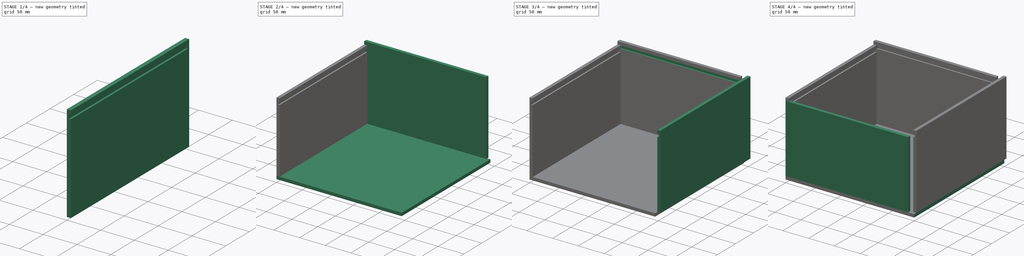
[diagram: build sequence overview — one tinted view per stage of 4, left to right]
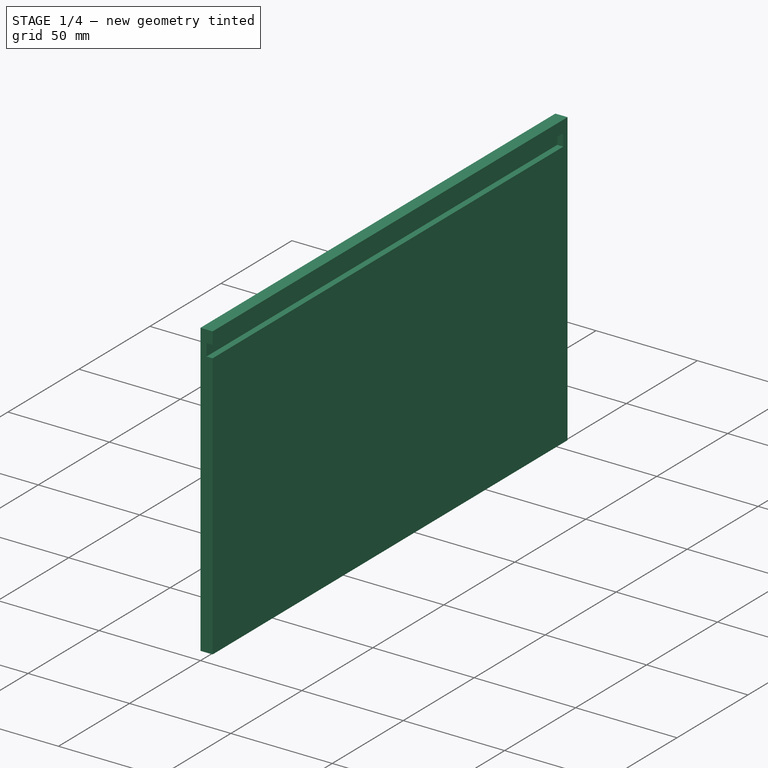
[diagram: stage 1 of 4 — iso view after this stage's code; geometry added in this stage tinted green]
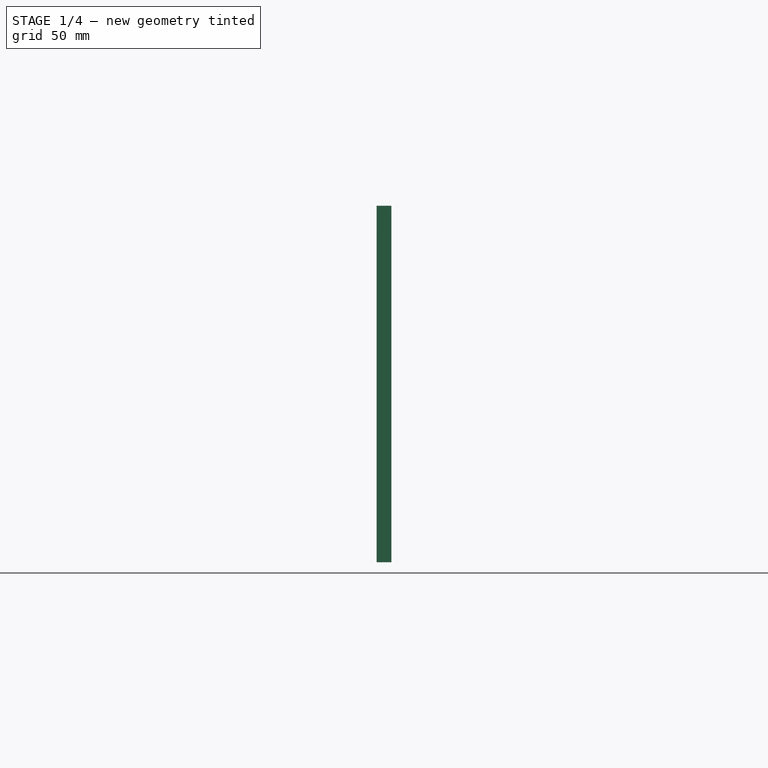
[diagram: stage 1 of 4 — front view after this stage's code; geometry added in this stage tinted green]
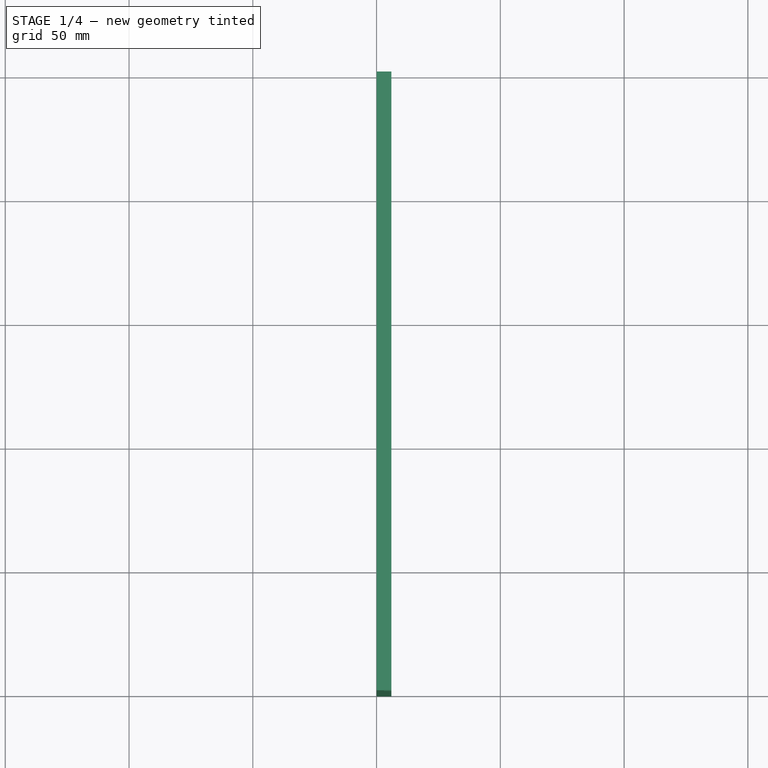
[diagram: stage 1 of 4 — top view after this stage's code; geometry added in this stage tinted green]
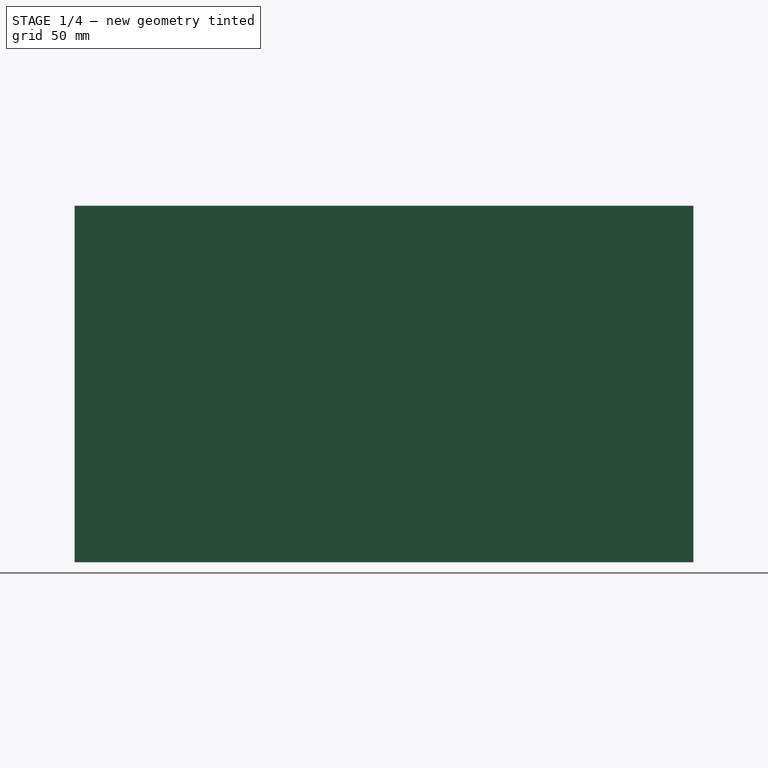
[diagram: stage 1 of 4 — right view after this stage's code; geometry added in this stage tinted green]
FCSTD DOCUMENT  (FreeCAD 0.20R29603 (Git))
Label: mill_cutter_box_precut
License: All rights reserved
LicenseURL: http://en.wikipedia.org/wiki/All_rights_reserved
objects: Part::Feature×12, Sketcher::SketchObject×9, PartDesign::Pad×6, PartDesign::Body×6, PartDesign::Pocket×3, App::DocumentObjectGroup×1, Part::FeaturePython×1
note: 46 computed .brp shape members not serialized (recipe doc carries the construction recipe); baked Part::Feature solids carry a one-line shape summary decoded from their .brp

FEATURE [PartDesign::Body] Body005  label="cover"
  Group = -> [Sketch008,Pad005]
  Origin = -> Origin005
  Placement = pos=(3,0,138) rot=(0,0,1;0rad)
  Tip = -> Pad005
FEATURE [Sketcher::SketchObject] Sketch009
  FullyConstrained = true
  MapMode = 5
  Placement = pos=(0,0,0) rot=(0.57735,0.57735,0.57735;2.0944rad)
  Support = -> [YZ_Plane006]
  sketch-geometry (4):
    g0: LineSegment StartX=0 StartY=0 StartZ=0 EndX=250 EndY=0 EndZ=0
    g1: LineSegment StartX=250 StartY=0 StartZ=0 EndX=250 EndY=144 EndZ=0
    g2: LineSegment StartX=250 StartY=144 StartZ=0 EndX=0 EndY=144 EndZ=0
    g3: LineSegment StartX=0 StartY=144 StartZ=0 EndX=0 EndY=0 EndZ=0
  constraints (11):
    c: Coincident(g0,g1)
    c: Coincident(g1,g2)
    c: Coincident(g2,g3)
    c: Coincident(g3,g0)
    c: Horizontal(g0)
    c: Horizontal(g2)
    c: Vertical(g1)
    c: Vertical(g3)
    c: Coincident(g0,g-1)
    c: DistanceX(g2,g2) = 250
    c: DistanceY(g1,g1) = 144
FEATURE [PartDesign::Pad] Pad006
  Direction = (1,-2e-16,3e-16)
  Length = 6
  Length2 = 10
  Placement = pos=(0,0,0) rot=(0.57735,0.57735,0.57735;2.0944rad)
  Profile = -> Sketch009
  ReferenceAxis = -> Sketch009 [N_Axis]
  Type = 0
FEATURE [Sketcher::SketchObject] Sketch010
  ExternalGeometry = -> [Pad006]
  FullyConstrained = true
  MapMode = 5
  Placement = pos=(6,-2.7e-15,2e-15) rot=(0.57735,0.57735,0.57735;2.0944rad)
  Support = -> [Pad006]
  sketch-geometry (4):
    g0: LineSegment StartX=5.68e-14 StartY=138 StartZ=0 EndX=247 EndY=138 EndZ=0
    g1: LineSegment StartX=247 StartY=138 StartZ=0 EndX=247 EndY=132 EndZ=0
    g2: LineSegment StartX=247 StartY=132 StartZ=0 EndX=5.68e-14 EndY=132 EndZ=0
    g3: LineSegment StartX=5.68e-14 StartY=132 StartZ=0 EndX=5.68e-14 EndY=138 EndZ=0
  constraints (12):
    c: Coincident(g0,g1)
    c: Coincident(g1,g2)
    c: Coincident(g2,g3)
    c: Coincident(g3,g0)
    c: Horizontal(g0)
    c: Horizontal(g2)
    c: Vertical(g1)
    c: Vertical(g3)
    c: PointOnObject(g0,g-4)
    c: DistanceY(g1,g1) = 6
    c: DistanceY(g0,g-4) = 6
    c: DistanceX(g0,g-3) = 3
FEATURE [PartDesign::Pocket] Pocket
  BaseFeature = -> Pad006
  Direction = (-1,4e-16,-4e-16)
  Length = 3
  Length2 = 5
  Placement = pos=(0,0,0) rot=(0.57735,0.57735,0.57735;2.0944rad)
  Profile = -> Sketch010
  ReferenceAxis = -> Sketch010 [N_Axis]
  Type = 0
FEATURE [PartDesign::Body] Body006  label="left_plate"
  Group = -> [Sketch009,Pad006,Sketch010,Pocket]
  Origin = -> Origin006
  Placement = pos=(0,0,6) rot=(0,0,1;0rad)
  Tip = -> Pocket
FEATURE [Part::Feature] Body007  label="bottom_plate001"
  shape: bbox 250 x 250 x 6 mm, 6 faces (baked)
FEATURE [Part::Feature] Body001001  label="front_plate001"
  Placement = pos=(6,0,0) rot=(0,0,1;0rad)
  shape: bbox 238 x 6 x 132 mm, 6 faces (baked)
FEATURE [Part::Feature] Body002001  label="back_plate001"
  Placement = pos=(6,0,0) rot=(0,0,1;0rad)
  shape: bbox 238 x 6 x 144 mm, 10 faces (baked)
FEATURE [Part::Feature] Body004001  label="right_plate001"
  Placement = pos=(0,-6,0) rot=(0,0,1;0rad)
  shape: bbox 6 x 250 x 144 mm, 10 faces (baked)
FEATURE [Part::Feature] Body005001  label="cover001"
  Placement = pos=(3,0,138) rot=(0,0,1;0rad)
  shape: bbox 244 x 247 x 6 mm, 6 faces (baked)
FEATURE [Part::Feature] Body006001  label="left_plate001"
  Placement = pos=(0,0,6) rot=(0,0,1;0rad)
  shape: bbox 6 x 250 x 144 mm, 10 faces (baked)
FEATURE [App::DocumentObjectGroup] MultiJoin_origin_parts
  Group = -> [Body007,Body001001,Body002001,Body004001,Body005001,Body006001]
FEATURE [Part::Feature] bottom_plate001_tab
  shape: bbox 250 x 250 x 6 mm, 62 faces (baked)
FEATURE [Part::Feature] front_plate001_tab
  shape: bbox 250 x 6 x 138 mm, 38 faces (baked)
FEATURE [Part::Feature] back_plate001_tab
  shape: bbox 250 x 6.032 x 150 mm, 46 faces (baked)
FEATURE [Part::Feature] right_plate001_tab
  shape: bbox 6 x 250 x 150 mm, 40 faces (baked)
FEATURE [Part::Feature] cover001_tab
  Placement = pos=(3,0,138) rot=(0,0,1;0rad)
  shape: bbox 244 x 247 x 6 mm, 6 faces (baked)
FEATURE [Part::Feature] left_plate001_tab
  shape: bbox 6 x 250 x 150 mm, 40 faces (baked)
FEATURE [Part::FeaturePython] MultiJoin  # WARN: FeaturePython — macro-defined, semantics opaque (R4)
  fromParts = -> [MultiJoin_origin_parts,Body007,Body001001,Body002001,Body004001,Body005001,Body006001]
  generatedParts = -> [bottom_plate001_tab,front_plate001_tab,back_plate001_tab,right_plate001_tab,cover001_tab,left_plate001_tab]
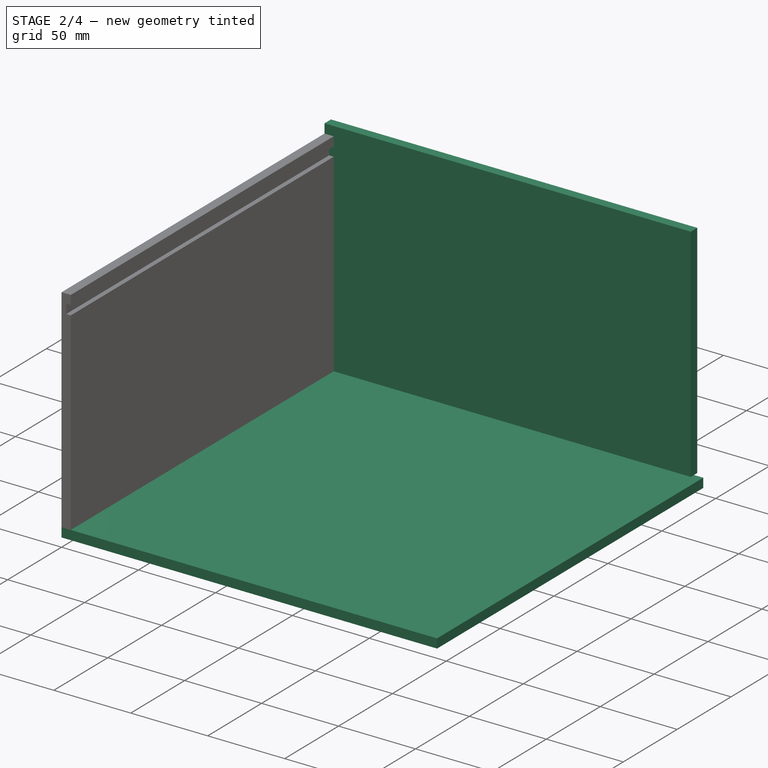
[diagram: stage 2 of 4 — iso view after this stage's code; geometry added in this stage tinted green]
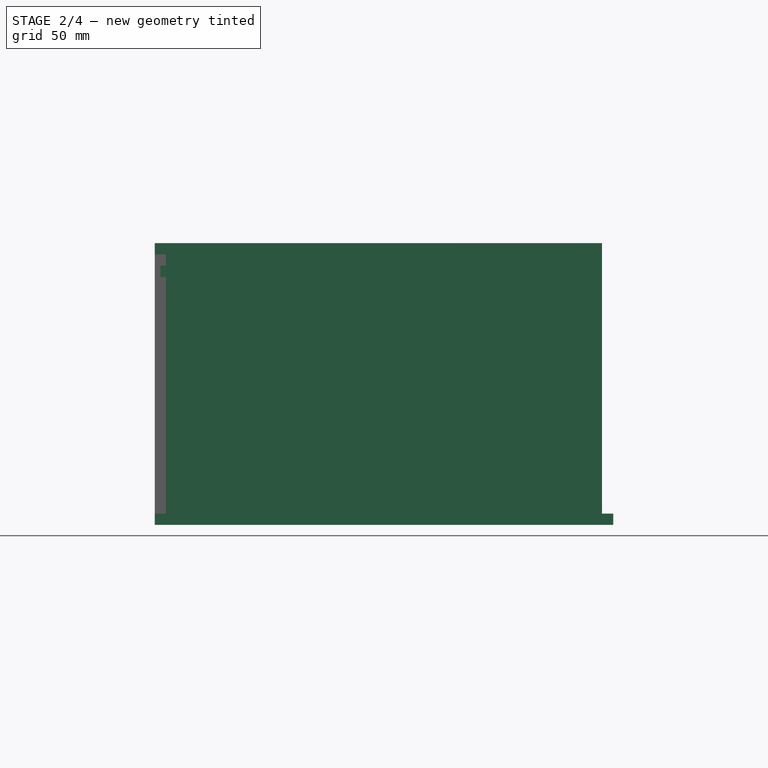
[diagram: stage 2 of 4 — front view after this stage's code; geometry added in this stage tinted green]
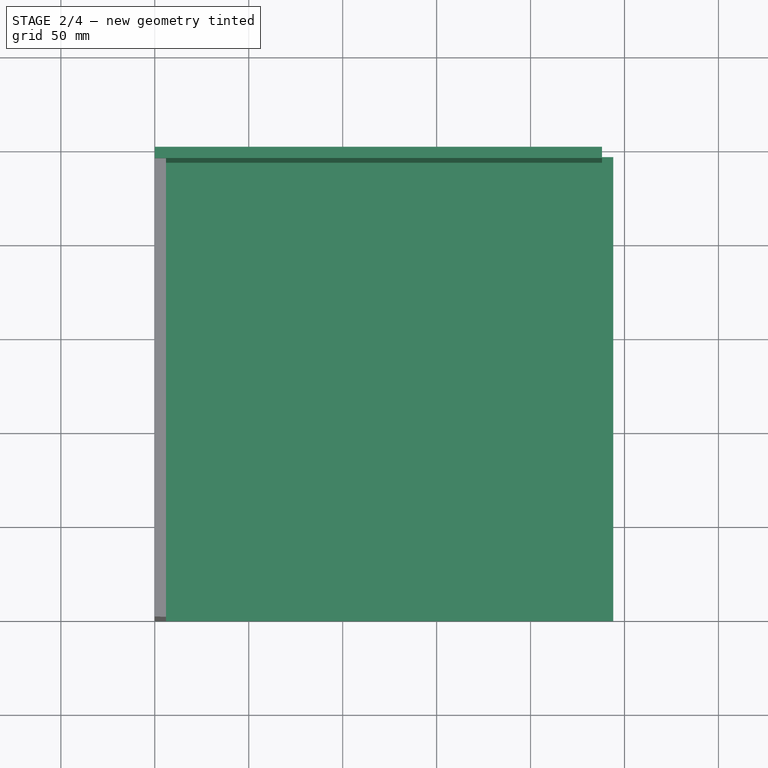
[diagram: stage 2 of 4 — top view after this stage's code; geometry added in this stage tinted green]
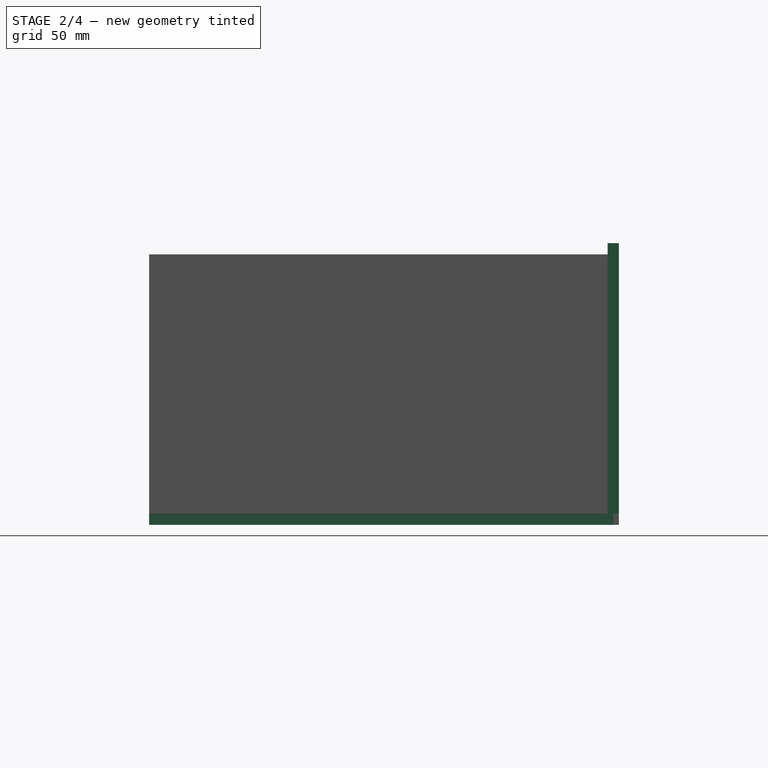
[diagram: stage 2 of 4 — right view after this stage's code; geometry added in this stage tinted green]
FEATURE [PartDesign::Body] Body001  label="front_plate"
  Group = -> [Sketch001,Pad001]
  Origin = -> Origin001
  Placement = pos=(6,0,0) rot=(0,0,1;0rad)
  Tip = -> Pad001
FEATURE [Sketcher::SketchObject] Sketch002
  AttachmentOffset = pos=(0,6,-250) rot=(0,0,1;0rad)
  FullyConstrained = true
  MapMode = 5
  Placement = pos=(0,250,6) rot=(1,0,0;1.5708rad)
  Support = -> [XZ_Plane002]
  sketch-geometry (4):
    g0: LineSegment StartX=0 StartY=0 StartZ=0 EndX=238 EndY=0 EndZ=0
    g1: LineSegment StartX=238 StartY=0 StartZ=0 EndX=238 EndY=144 EndZ=0
    g2: LineSegment StartX=238 StartY=144 StartZ=0 EndX=0 EndY=144 EndZ=0
    g3: LineSegment StartX=0 StartY=144 StartZ=0 EndX=0 EndY=0 EndZ=0
  constraints (11):
    c: Coincident(g0,g1)
    c: Coincident(g1,g2)
    c: Coincident(g2,g3)
    c: Coincident(g3,g0)
    c: Horizontal(g0)
    c: Horizontal(g2)
    c: Vertical(g1)
    c: Vertical(g3)
    c: Coincident(g0,g-1)
    c: DistanceX(g2,g2) = 238
    c: DistanceY(g3,g3) = 144
FEATURE [PartDesign::Pad] Pad002
  Direction = (0,-1,-2e-16)
  Length = 6
  Length2 = 10
  Placement = pos=(0,0,0) rot=(1,0,0;1.5708rad)
  Profile = -> Sketch002
  ReferenceAxis = -> Sketch002 [N_Axis]
  Type = 0
FEATURE [PartDesign::Body] Body002  label="back_plate"
  Group = -> [Sketch002,Pad002,Sketch007,Pocket002]
  Origin = -> Origin002
  Placement = pos=(6,0,0) rot=(0,0,1;0rad)
  Tip = -> Pocket002
FEATURE [Sketcher::SketchObject] Sketch008
  FullyConstrained = true
  MapMode = 5
  Support = -> [XY_Plane005]
  sketch-geometry (4):
    g0: LineSegment StartX=0 StartY=0 StartZ=0 EndX=244 EndY=0 EndZ=0
    g1: LineSegment StartX=244 StartY=0 StartZ=0 EndX=244 EndY=247 EndZ=0
    g2: LineSegment StartX=244 StartY=247 StartZ=0 EndX=0 EndY=247 EndZ=0
    g3: LineSegment StartX=0 StartY=247 StartZ=0 EndX=0 EndY=0 EndZ=0
  constraints (11):
    c: Coincident(g0,g1)
    c: Coincident(g1,g2)
    c: Coincident(g2,g3)
    c: Coincident(g3,g0)
    c: Horizontal(g0)
    c: Horizontal(g2)
    c: Vertical(g1)
    c: Vertical(g3)
    c: Coincident(g0,g-1)
    c: DistanceY(g1,g1) = 247
    c: DistanceX(g0,g0) = 244
FEATURE [PartDesign::Pad] Pad005
  Direction = (0,0,1)
  Length = 6
  Length2 = 10
  Profile = -> Sketch008
  ReferenceAxis = -> Sketch008 [N_Axis]
  Type = 0
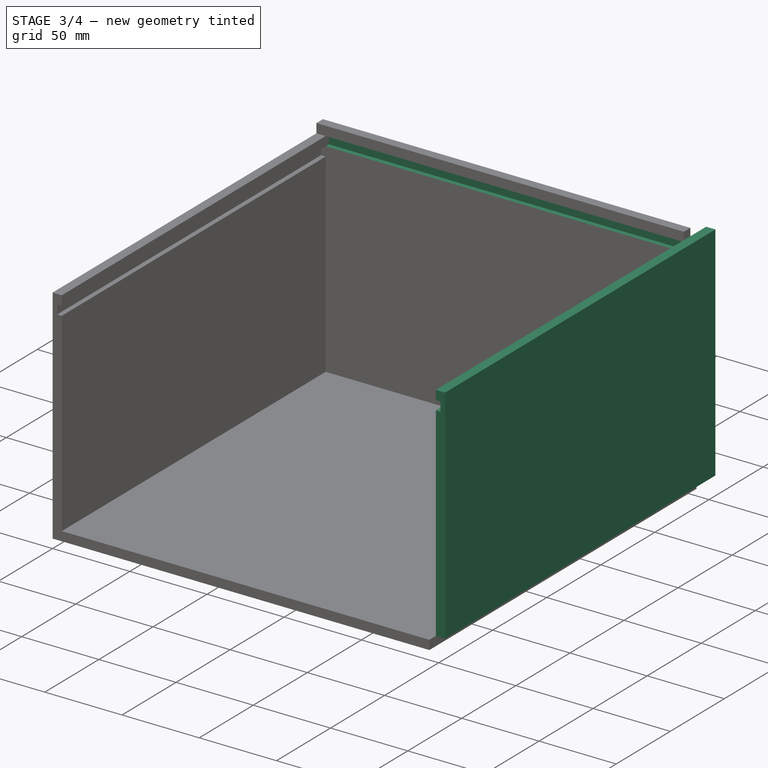
[diagram: stage 3 of 4 — iso view after this stage's code; geometry added in this stage tinted green]
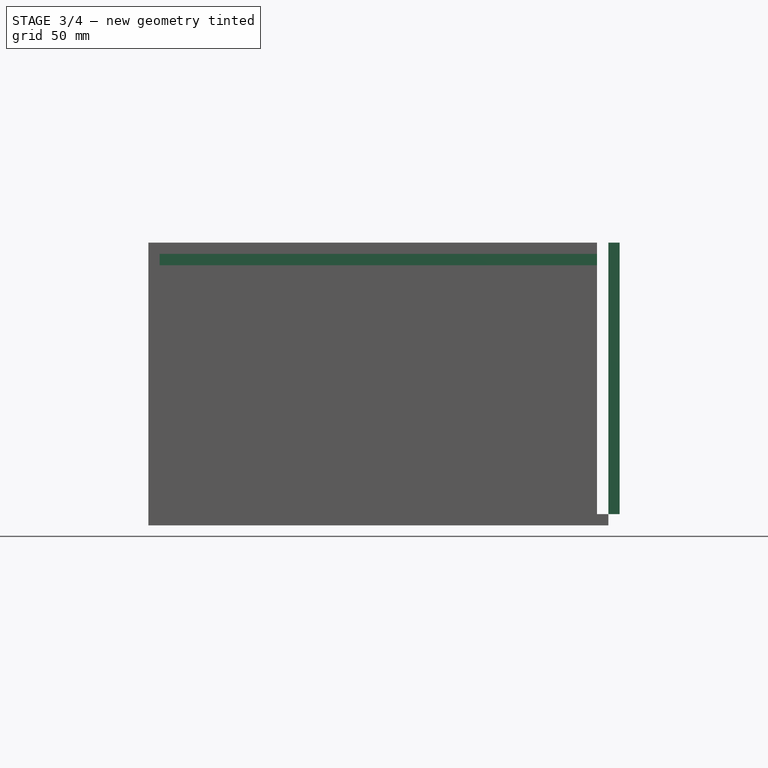
[diagram: stage 3 of 4 — front view after this stage's code; geometry added in this stage tinted green]
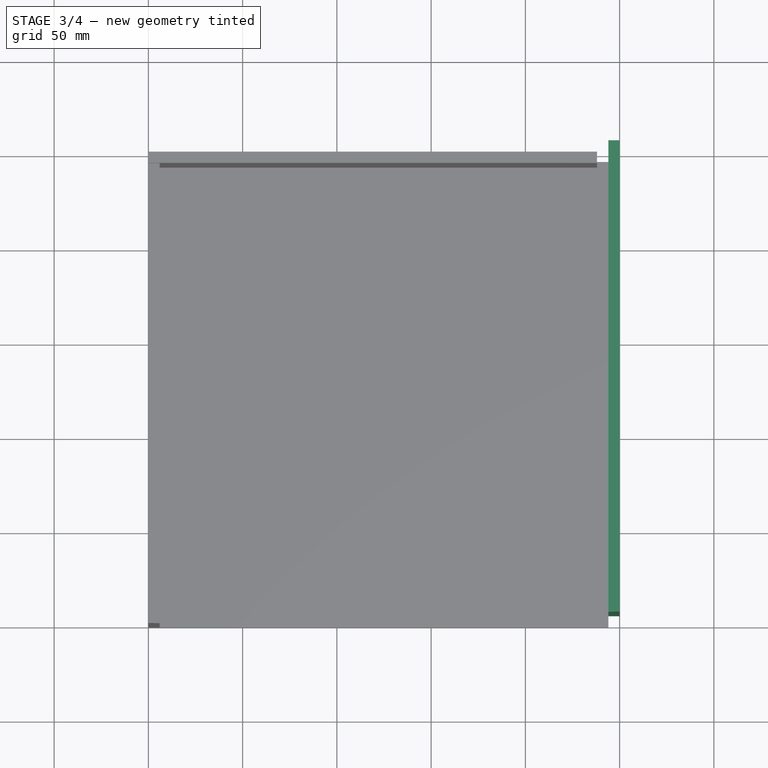
[diagram: stage 3 of 4 — top view after this stage's code; geometry added in this stage tinted green]
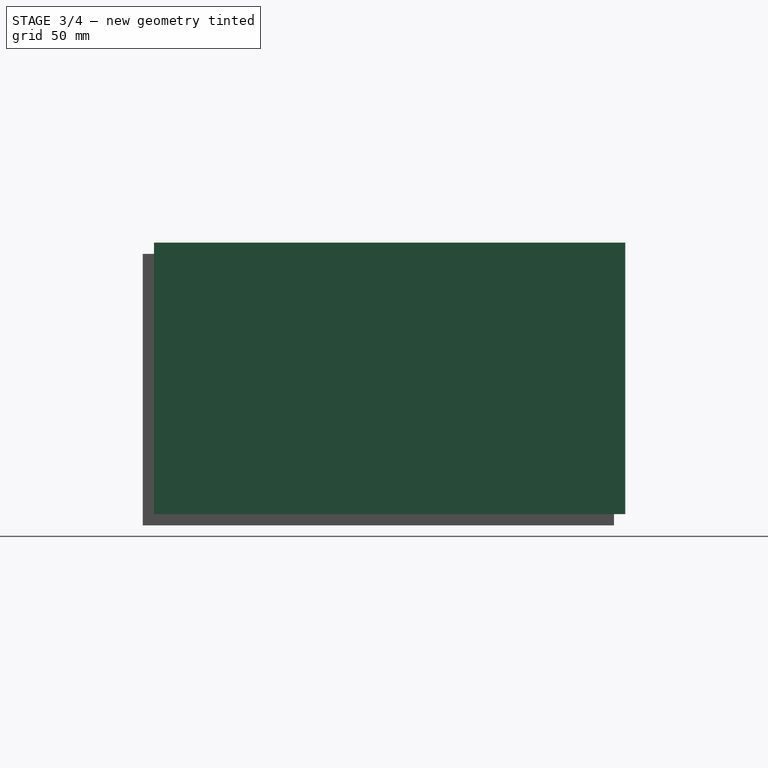
[diagram: stage 3 of 4 — right view after this stage's code; geometry added in this stage tinted green]
FEATURE [Sketcher::SketchObject] Sketch004
  AttachmentOffset = pos=(6,6,250) rot=(0,0,1;0rad)
  FullyConstrained = true
  MapMode = 5
  Placement = pos=(250,6,6) rot=(0.57735,0.57735,0.57735;2.0944rad)
  Support = -> [YZ_Plane004]
  sketch-geometry (4):
    g0: LineSegment StartX=0 StartY=0 StartZ=0 EndX=250 EndY=0 EndZ=0
    g1: LineSegment StartX=250 StartY=0 StartZ=0 EndX=250 EndY=144 EndZ=0
    g2: LineSegment StartX=250 StartY=144 StartZ=0 EndX=0 EndY=144 EndZ=0
    g3: LineSegment StartX=0 StartY=144 StartZ=0 EndX=0 EndY=0 EndZ=0
  constraints (11):
    c: Coincident(g0,g1)
    c: Coincident(g1,g2)
    c: Coincident(g2,g3)
    c: Coincident(g3,g0)
    c: Horizontal(g0)
    c: Horizontal(g2)
    c: Vertical(g1)
    c: Vertical(g3)
    c: Coincident(g0,g-1)
    c: DistanceY(g3,g3) = 144
    c: DistanceX(g0,g0) = 250
FEATURE [PartDesign::Pad] Pad004
  Direction = (1,-2e-16,3e-16)
  Length = 6
  Length2 = 10
  Placement = pos=(0,0,0) rot=(0.57735,0.57735,0.57735;2.0944rad)
  Profile = -> Sketch004
  ReferenceAxis = -> Sketch004 [N_Axis]
  Reversed = true
  Type = 0
FEATURE [Sketcher::SketchObject] Sketch006
  ExternalGeometry = -> [Pad004]
  FullyConstrained = true
  MapMode = 5
  Placement = pos=(244,-1.097e-13,7.52e-14) rot=(-0.57735,-0.57735,0.57735;2.0944rad)
  Support = -> [Pad004]
  sketch-geometry (4):
    g0: LineSegment StartX=6 StartY=-138 StartZ=0 EndX=253 EndY=-138 EndZ=0
    g1: LineSegment StartX=253 StartY=-138 StartZ=0 EndX=253 EndY=-144 EndZ=0
    g2: LineSegment StartX=253 StartY=-144 StartZ=0 EndX=6 EndY=-144 EndZ=0
    g3: LineSegment StartX=6 StartY=-144 StartZ=0 EndX=6 EndY=-138 EndZ=0
  constraints (12):
    c: Coincident(g0,g1)
    c: Coincident(g1,g2)
    c: Coincident(g2,g3)
    c: Coincident(g3,g0)
    c: Horizontal(g0)
    c: Horizontal(g2)
    c: Vertical(g1)
    c: Vertical(g3)
    c: PointOnObject(g0,g-4)
    c: DistanceY(g-3,g1) = 6
    c: DistanceY(g1,g1) = 6
    c: DistanceX(g1,g-3) = 3
FEATURE [PartDesign::Pocket] Pocket001
  BaseFeature = -> Pad004
  Direction = (1,-4e-16,3e-16)
  Length = 3
  Length2 = 5
  Placement = pos=(0,0,0) rot=(0.57735,0.57735,0.57735;2.0944rad)
  Profile = -> Sketch006
  ReferenceAxis = -> Sketch006 [N_Axis]
  Type = 0
FEATURE [PartDesign::Body] Body004  label="right_plate"
  Group = -> [Sketch004,Pad004,Sketch006,Pocket001]
  Origin = -> Origin004
  Placement = pos=(0,-6,0) rot=(0,0,1;0rad)
  Tip = -> Pocket001
FEATURE [Sketcher::SketchObject] Sketch007
  ExternalGeometry = -> [Pad002]
  FullyConstrained = true
  MapMode = 5
  Placement = pos=(0,244,4.82e-14) rot=(1,0,0;1.5708rad)
  Support = -> [Pad002]
  sketch-geometry (4):
    g0: LineSegment StartX=0 StartY=144 StartZ=0 EndX=238 EndY=144 EndZ=0
    g1: LineSegment StartX=238 StartY=144 StartZ=0 EndX=238 EndY=138 EndZ=0
    g2: LineSegment StartX=238 StartY=138 StartZ=0 EndX=0 EndY=138 EndZ=0
    g3: LineSegment StartX=0 StartY=138 StartZ=0 EndX=0 EndY=144 EndZ=0
  constraints (12):
    c: Coincident(g0,g1)
    c: Coincident(g1,g2)
    c: Coincident(g2,g3)
    c: Coincident(g3,g0)
    c: Horizontal(g0)
    c: Horizontal(g2)
    c: Vertical(g1)
    c: Vertical(g3)
    c: DistanceY(g1,g1) = 6
    c: DistanceY(g0,g-3) = 6
    c: PointOnObject(g0,g-3)
    c: PointOnObject(g0,g-4)
FEATURE [PartDesign::Pocket] Pocket002
  BaseFeature = -> Pad002
  Direction = (0,1,2e-16)
  Length = 3
  Length2 = 5
  Placement = pos=(0,0,0) rot=(1,0,0;1.5708rad)
  Profile = -> Sketch007
  ReferenceAxis = -> Sketch007 [N_Axis]
  Type = 0
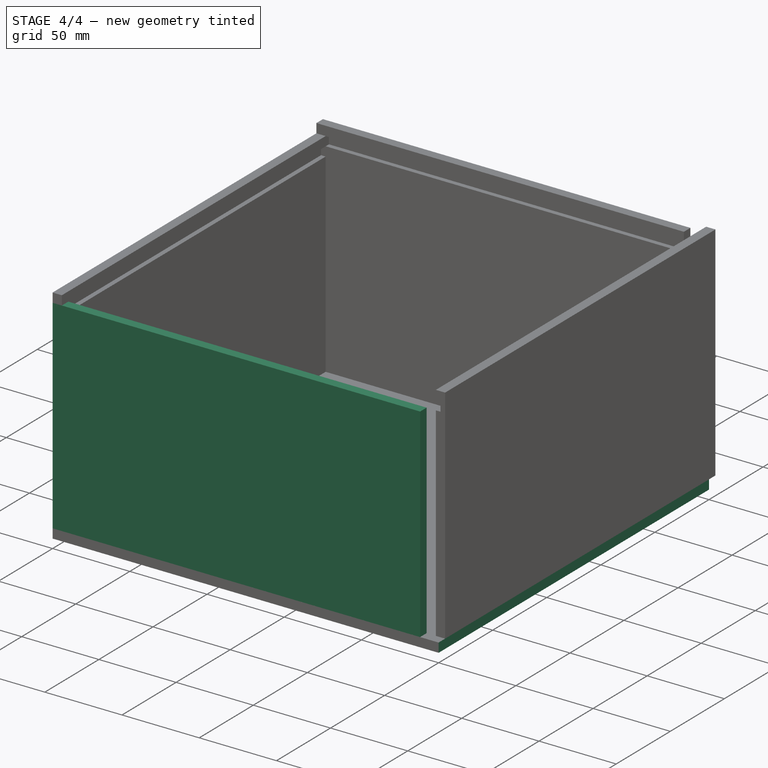
[diagram: stage 4 of 4 — iso view after this stage's code; geometry added in this stage tinted green]
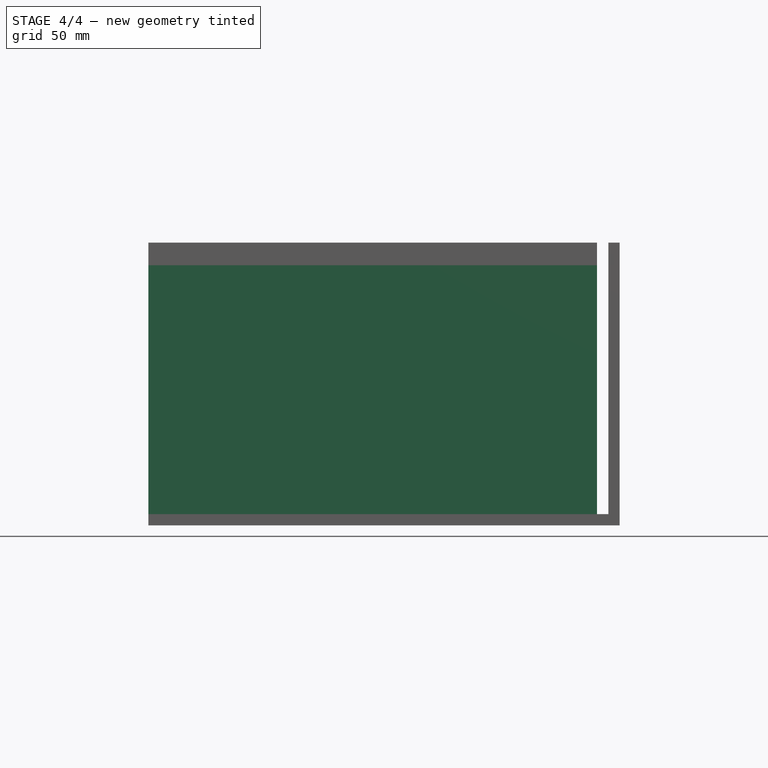
[diagram: stage 4 of 4 — front view after this stage's code; geometry added in this stage tinted green]
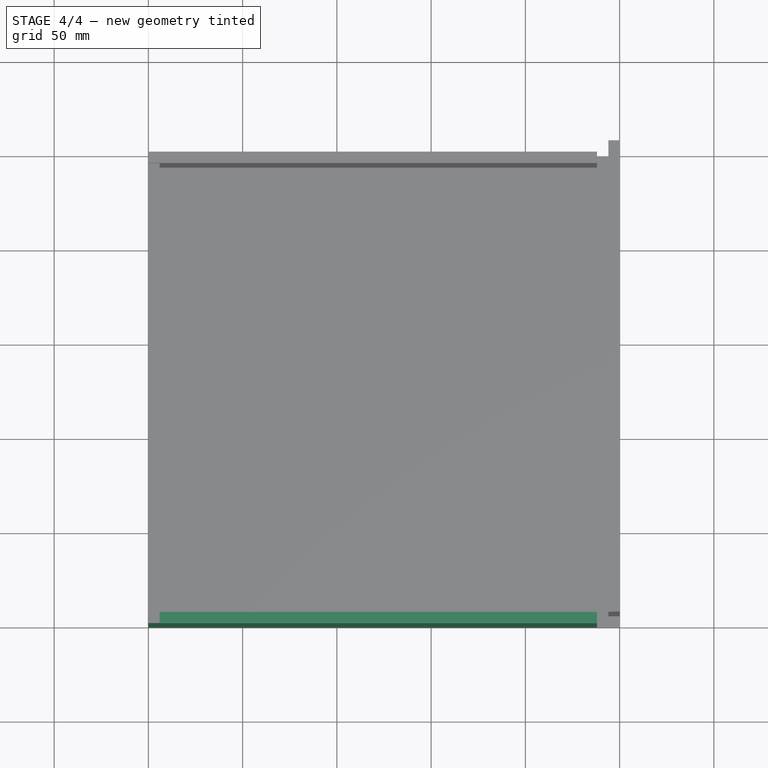
[diagram: stage 4 of 4 — top view after this stage's code; geometry added in this stage tinted green]
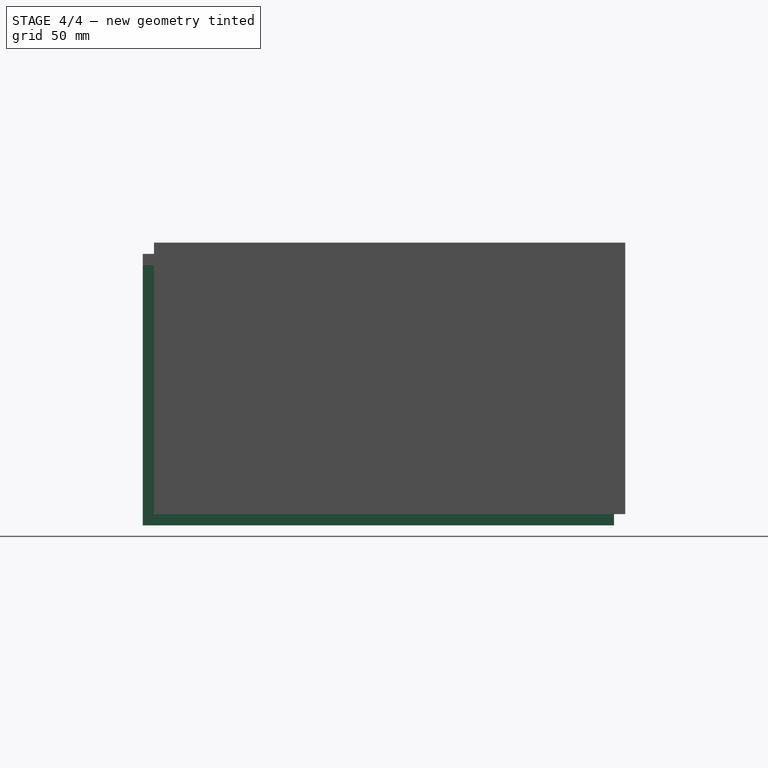
[diagram: stage 4 of 4 — right view after this stage's code; geometry added in this stage tinted green]
FEATURE [Sketcher::SketchObject] Sketch
  FullyConstrained = true
  MapMode = 5
  Support = -> [XY_Plane]
  sketch-geometry (4):
    g0: LineSegment StartX=0 StartY=0 StartZ=0 EndX=250 EndY=0 EndZ=0
    g1: LineSegment StartX=250 StartY=0 StartZ=0 EndX=250 EndY=250 EndZ=0
    g2: LineSegment StartX=250 StartY=250 StartZ=0 EndX=0 EndY=250 EndZ=0
    g3: LineSegment StartX=0 StartY=250 StartZ=0 EndX=0 EndY=0 EndZ=0
  constraints (11):
    c: Coincident(g0,g1)
    c: Coincident(g1,g2)
    c: Coincident(g2,g3)
    c: Coincident(g3,g0)
    c: Horizontal(g0)
    c: Horizontal(g2)
    c: Vertical(g1)
    c: Vertical(g3)
    c: Coincident(g0,g-1)
    c: DistanceY(g1,g1) = 250
    c: DistanceX(g0,g0) = 250
FEATURE [PartDesign::Pad] Pad
  Direction = (0,0,1)
  Length = 6
  Length2 = 10
  Profile = -> Sketch
  ReferenceAxis = -> Sketch [N_Axis]
  Type = 0
FEATURE [PartDesign::Body] Body  label="bottom_plate"
  Group = -> [Sketch,Pad]
  Origin = -> Origin
  Tip = -> Pad
FEATURE [Sketcher::SketchObject] Sketch001
  AttachmentOffset = pos=(0,6,0) rot=(0,0,1;0rad)
  FullyConstrained = true
  MapMode = 5
  Placement = pos=(0,-1.3e-15,6) rot=(1,0,0;1.5708rad)
  Support = -> [XZ_Plane001]
  sketch-geometry (4):
    g0: LineSegment StartX=0 StartY=0 StartZ=0 EndX=238 EndY=0 EndZ=0
    g1: LineSegment StartX=238 StartY=0 StartZ=0 EndX=238 EndY=132 EndZ=0
    g2: LineSegment StartX=238 StartY=132 StartZ=0 EndX=0 EndY=132 EndZ=0
    g3: LineSegment StartX=0 StartY=132 StartZ=0 EndX=0 EndY=0 EndZ=0
  constraints (11):
    c: Coincident(g0,g1)
    c: Coincident(g1,g2)
    c: Coincident(g2,g3)
    c: Coincident(g3,g0)
    c: Horizontal(g0)
    c: Horizontal(g2)
    c: Vertical(g1)
    c: Vertical(g3)
    c: Coincident(g0,g-1)
    c: DistanceY(g1,g1) = 132
    c: DistanceX(g0,g0) = 238
FEATURE [PartDesign::Pad] Pad001
  Direction = (0,-1,-2e-16)
  Length = 6
  Length2 = 10
  Placement = pos=(0,0,0) rot=(1,0,0;1.5708rad)
  Profile = -> Sketch001
  ReferenceAxis = -> Sketch001 [N_Axis]
  Reversed = true
  Type = 0
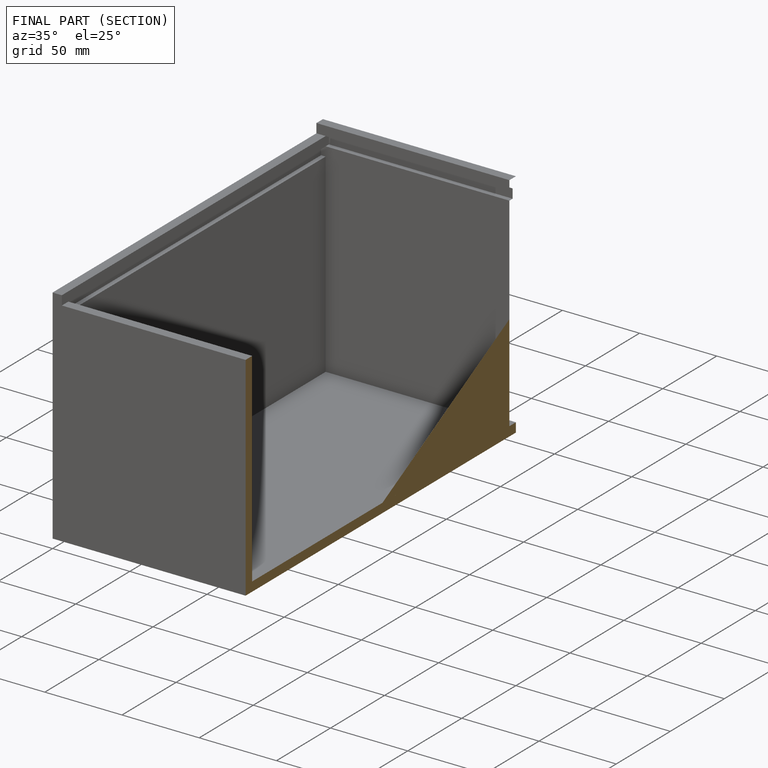
[diagram: finished part — half-section view (interior)]
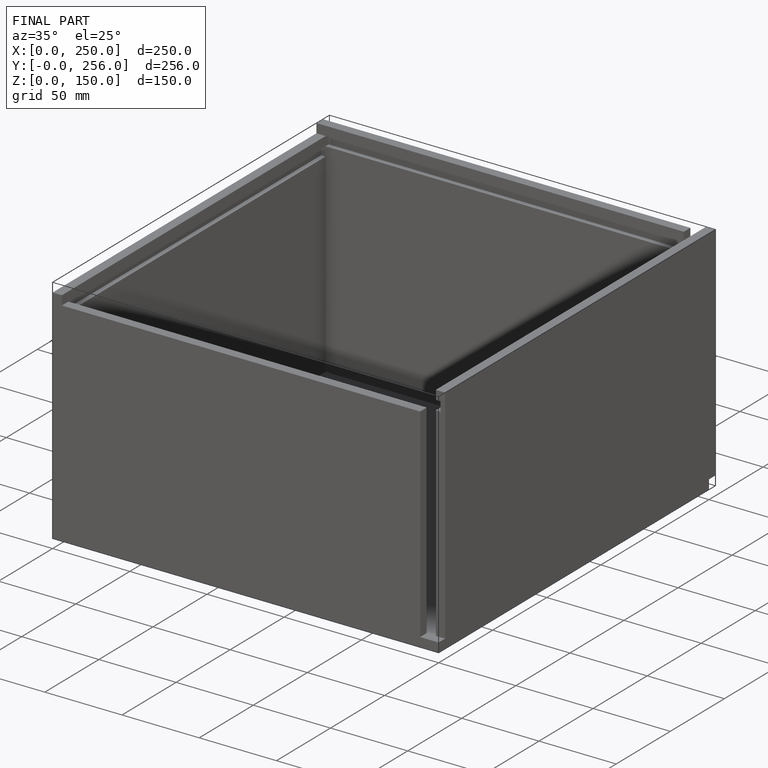
[diagram: finished part — iso view with bounding-box wireframe]
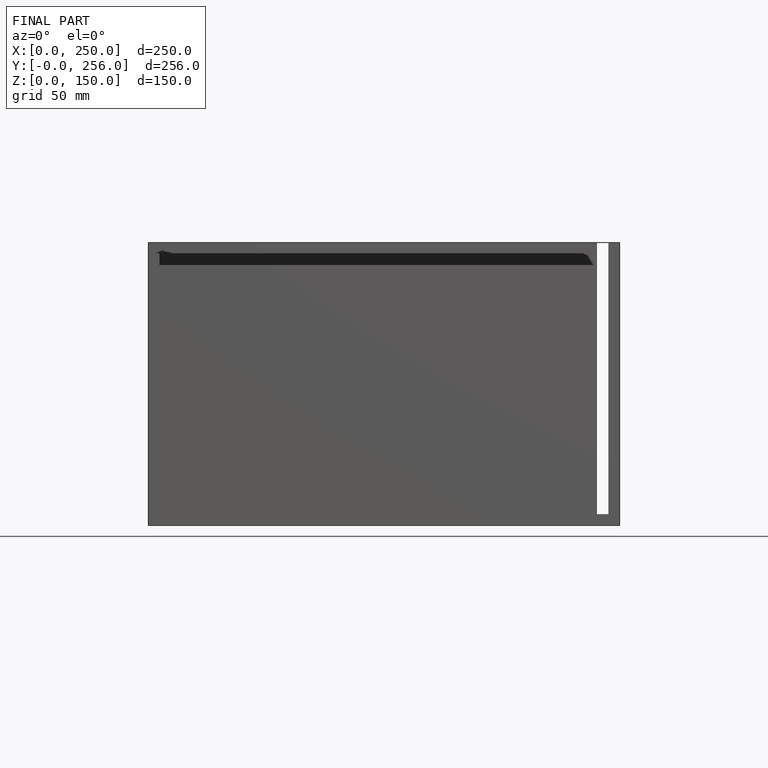
[diagram: finished part — front view with bounding-box wireframe]
